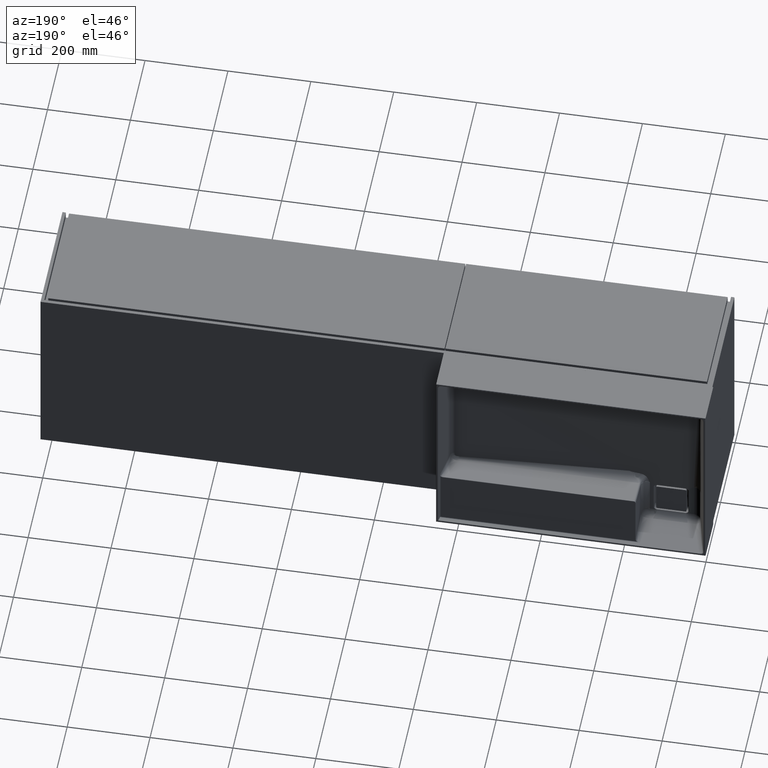
[diagram: clean part render]
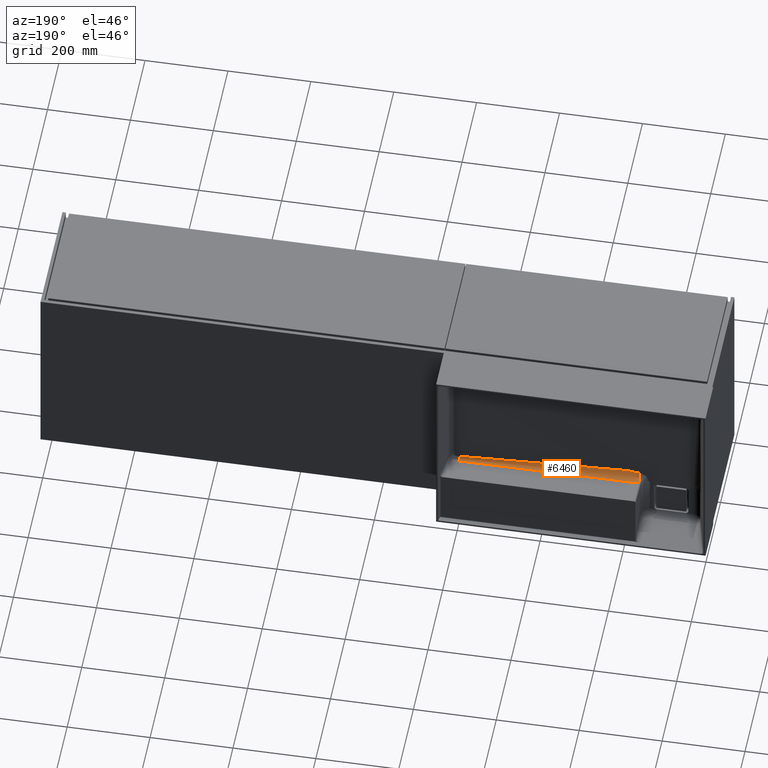
[diagram: same view with one face highlighted and labeled with its STEP entity id]
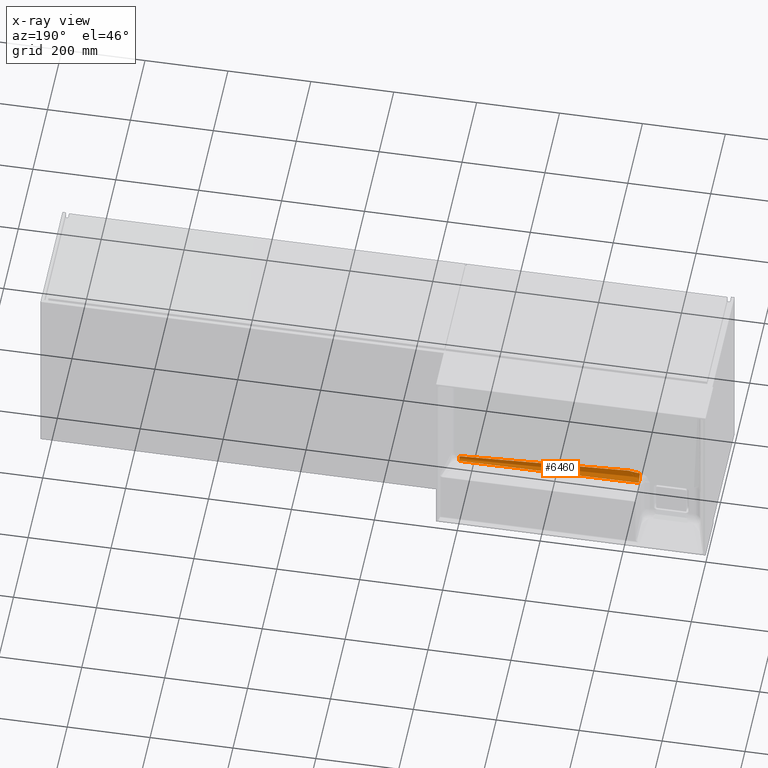
[diagram: x-ray of the same camera — body ghosted, the highlighted face saturated]
A machine part, auxiliary view. The second image highlights one B-rep face of the part: STEP entity #6460.
The next image is the same camera in x-ray: the body ghosted, the highlighted face saturated — about 0% of this face is hidden behind the body in this view.
In plain terms, the highlighted face is a freeform B-spline surface patch.
Its self-contained STEP definition (entity closure, byte-faithful):
#254 = CARTESIAN_POINT ( 'NONE',  ( 173.9812721945681062, 316.6229568114036965, -309.0496244574869706 ) ) ;
#281 = CARTESIAN_POINT ( 'NONE',  ( 198.8552613548532406, 316.8220531439237675, -304.8234223945268013 ) ) ;
#357 = CARTESIAN_POINT ( 'NONE',  ( 184.6771654203996320, 316.6808296650964962, -307.8211619812075241 ) ) ;
#382 = CARTESIAN_POINT ( 'NONE',  ( 318.3003675270152826, 320.5153372332214872, -323.0495504626817365 ) ) ;
#959 = ORIENTED_EDGE ( 'NONE', *, *, #3617, .F. ) ;
#972 = VERTEX_POINT ( 'NONE', #13473 ) ;
#1123 = CARTESIAN_POINT ( 'NONE',  ( 606.9319754812725023, 329.4440480074060815, -315.4900018526547569 ) ) ;
#1581 = CARTESIAN_POINT ( 'NONE',  ( 191.0590375558672918, 316.7265386575339789, -306.8509008232532551 ) ) ;
#1605 = CARTESIAN_POINT ( 'NONE',  ( 174.0026961197891922, 316.0515427703932119, -304.4234434570518602 ) ) ;
#1911 = CARTESIAN_POINT ( 'NONE',  ( 173.8613598786187708, 320.1329318382710767, -323.0395368250019601 ) ) ;
#1966 = B_SPLINE_CURVE_WITH_KNOTS ( 'NONE', 3,
 ( #6497, #11453, #281, #5281, #10247, #15215, #4060, #9026, #13977, #2814, #7800, #12754, #1581, #6578, #11534, #357, #5360, #10322, #15291, #4137 ),
 .UNSPECIFIED., .F., .F.,
 ( 4, 2, 2, 2, 2, 2, 2, 2, 2, 4 ),
 ( 0.0000000000000000000, 0.0008055719474762392191, 0.001611143894952478438, 0.003222287789904877946, 0.004833431684857278539, 0.006444575579809678698, 0.009666863369714480750, 0.01288915115961928280, 0.01933372673942888517, 0.02577830231923849275 ),
 .UNSPECIFIED. ) ;
#2144 = CARTESIAN_POINT ( 'NONE',  ( 199.3272960926469750, 316.8349497930412326, -304.5496662463541497 ) ) ;
#2350 = CARTESIAN_POINT ( 'NONE',  ( 606.8985585372915921, 330.4204131196938192, -319.4569766867286944 ) ) ;
#2675 = CARTESIAN_POINT ( 'NONE',  ( 199.3272960926469750, 316.8349497930412326, -304.5496662463541497 ) ) ;
#2786 = ORIENTED_EDGE ( 'NONE', *, *, #5492, .F. ) ;
#2814 = CARTESIAN_POINT ( 'NONE',  ( 194.2290445181043594, 316.7556448546313845, -306.2330658854570515 ) ) ;
#2835 = CARTESIAN_POINT ( 'NONE',  ( 606.9319754812725023, 329.4440480074060815, -315.4900018526547569 ) ) ;
#3593 = CARTESIAN_POINT ( 'NONE',  ( 606.8073170552664806, 333.2926610861865697, -322.4068700512898999 ) ) ;
#3617 = EDGE_CURVE ( 'NONE', #10510, #11130, #9032, .T. ) ;
#3915 = CARTESIAN_POINT ( 'NONE',  ( 606.9319754812725023, 329.4440480074060815, -315.4900018526547569 ) ) ;
#4060 = CARTESIAN_POINT ( 'NONE',  ( 196.8433714277378499, 316.7865976977785749, -305.5760323383928494 ) ) ;
#4137 = CARTESIAN_POINT ( 'NONE',  ( 173.9812721945681062, 316.6229568114036965, -309.0496244574869706 ) ) ;
#4160 = CARTESIAN_POINT ( 'NONE',  ( 317.7278697431761998, 339.0093540719751104, -323.5338333371205977 ) ) ;
#4500 = CARTESIAN_POINT ( 'NONE',  ( 462.3719663152675139, 332.7665495266904259, -323.3703597469259421 ) ) ;
#4548 = CARTESIAN_POINT ( 'NONE',  ( 173.4152192562205528, 334.5450962275781421, -323.4169326313426609 ) ) ;
#4826 = CARTESIAN_POINT ( 'NONE',  ( 606.6846168019388870, 337.2308073616522961, -323.4872604524568942 ) ) ;
#5281 = CARTESIAN_POINT ( 'NONE',  ( 198.3646758481633299, 316.8115746191032258, -305.0458492099915020 ) ) ;
#5360 = CARTESIAN_POINT ( 'NONE',  ( 182.5415527639360675, 316.6680791695544031, -308.0918157390203760 ) ) ;
#5383 = CARTESIAN_POINT ( 'NONE',  ( 173.9877170403044886, 316.0510793981750339, -322.9326497571486243 ) ) ;
#5492 = EDGE_CURVE ( 'NONE', #972, #10553, #10152, .T. ) ;
#5665 = ORIENTED_EDGE ( 'NONE', *, *, #9580, .F. ) ;
#6105 = CARTESIAN_POINT ( 'NONE',  ( 606.6846168019388870, 337.2308073616522961, -323.4872604524568942 ) ) ;
#6460 = ADVANCED_FACE ( 'NONE', ( #9047 ), #7933, .T. ) ;
#6497 = CARTESIAN_POINT ( 'NONE',  ( 199.3272960926469750, 316.8349497930412326, -304.5496662463541497 ) ) ;
#6578 = CARTESIAN_POINT ( 'NONE',  ( 188.9359916805836122, 316.7100343581346920, -307.2012362778853571 ) ) ;
#6605 = CARTESIAN_POINT ( 'NONE',  ( 606.9256685004369274, 329.4438529033142800, -323.2833518737480745 ) ) ;
#6912 = CARTESIAN_POINT ( 'NONE',  ( 173.9812721945681062, 316.6229568114036397, -309.0496244574869706 ) ) ;
#7351 = CARTESIAN_POINT ( 'NONE',  ( 606.9240862386012623, 329.6451574235028943, -317.5491274639952053 ) ) ;
#7800 = CARTESIAN_POINT ( 'NONE',  ( 193.7021115397276958, 316.7503751772954956, -306.3449249084015378 ) ) ;
#7823 = CARTESIAN_POINT ( 'NONE',  ( 462.6193249945617367, 324.9797901723597420, -315.3731011471215879 ) ) ;
#7933 =( BOUNDED_SURFACE ( )  B_SPLINE_SURFACE ( 2, 3, ( 
 ( #2835, #7823, #12778, #1605 ),
 ( #6605, #11558, #382, #5383 ),
 ( #10343, #15311, #4160, #9126 ) ),
 .UNSPECIFIED., .F., .F., .T. ) 
 B_SPLINE_SURFACE_WITH_KNOTS ( ( 3, 3 ),
 ( 4, 4 ),
 ( 0.0000000000000000000, 1.000000000000000000 ),
 ( -0.4346882425457793686, -0.001543048426497325726 ),
 .UNSPECIFIED. ) 
 GEOMETRIC_REPRESENTATION_ITEM ( )  RATIONAL_B_SPLINE_SURFACE ( (
 ( 1.000000000000000000, 1.000000000000000000, 1.000000000000000000, 1.000000000000000000),
 ( 0.7162975751252874668, 0.7162975751252874668, 0.7162975751252874668, 0.7162975751252874668),
 ( 1.000000000000000000, 1.000000000000000000, 1.000000000000000000, 1.000000000000000000) ) ) 
 REPRESENTATION_ITEM ( '' )  SURFACE ( )  );
#8561 = CARTESIAN_POINT ( 'NONE',  ( 606.8344669809554262, 332.4306366061871927, -321.8099686274450733 ) ) ;
#8885 = CARTESIAN_POINT ( 'NONE',  ( 471.0608868346715781, 325.2409267287021066, -315.3799392485047974 ) ) ;
#8938 = VERTEX_POINT ( 'NONE', #254 ) ;
#9017 = ORIENTED_EDGE ( 'NONE', *, *, #13083, .T. ) ;
#9026 = CARTESIAN_POINT ( 'NONE',  ( 195.8048643806831706, 316.7731144977071267, -305.8622391571529420 ) ) ;
#9032 = B_SPLINE_CURVE_WITH_KNOTS ( 'NONE', 3,
 ( #10677, #15654, #4500, #9465 ),
 .UNSPECIFIED., .F., .F.,
 ( 4, 4 ),
 ( -0.4346882425457793686, -0.001543048426497328762 ),
 .UNSPECIFIED. ) ;
#9047 = FACE_OUTER_BOUND ( 'NONE', #15394, .T. ) ;
#9126 = CARTESIAN_POINT ( 'NONE',  ( 173.4152192564654058, 334.5450962369286572, -323.4169326315874287 ) ) ;
#9465 = CARTESIAN_POINT ( 'NONE',  ( 606.6846168019388870, 337.2308073616522961, -323.4872604524568942 ) ) ;
#9518 =( BOUNDED_CURVE ( )  B_SPLINE_CURVE ( 2, ( #13077, #1911, #6912 ),
 .UNSPECIFIED., .F., .T. ) 
 B_SPLINE_CURVE_WITH_KNOTS ( ( 3, 3 ),
 ( 0.0000000000000000000, 1.000000000000000000 ),
 .UNSPECIFIED. ) 
 CURVE ( )  GEOMETRIC_REPRESENTATION_ITEM ( )  RATIONAL_B_SPLINE_CURVE ( ( 1.000000000000000000, 0.7641457412185800324, 0.9204434452545302570 ) ) 
 REPRESENTATION_ITEM ( '' )  );
#9580 = EDGE_CURVE ( 'NONE', #11130, #972, #9609, .T. ) ;
#9609 = B_SPLINE_CURVE_WITH_KNOTS ( 'NONE', 3,
 ( #4826, #9792, #14756, #3593, #8561, #13515, #2350, #7351, #12296, #1123 ),
 .UNSPECIFIED., .F., .F.,
 ( 4, 2, 2, 2, 4 ),
 ( 0.0000000000000000000, 0.2500000000000000000, 0.5000000000000000000, 0.7500000000000000000, 1.000000000000000000 ),
 .UNSPECIFIED. ) ;
#9792 = CARTESIAN_POINT ( 'NONE',  ( 606.7164674865446159, 336.2019001532993911, -323.4603175689985619 ) ) ;
#10152 = B_SPLINE_CURVE_WITH_KNOTS ( 'NONE', 3,
 ( #3915, #8885, #13837, #2675 ),
 .UNSPECIFIED., .F., .F.,
 ( 4, 4 ),
 ( -0.4346882425457793686, -0.02687985659662373017 ),
 .UNSPECIFIED. ) ;
#10247 = CARTESIAN_POINT ( 'NONE',  ( 198.1148904920754887, 316.8069209751066637, -305.1446317420970900 ) ) ;
#10322 = CARTESIAN_POINT ( 'NONE',  ( 178.2644837121267187, 316.6443237527143424, -308.5960700885866572 ) ) ;
#10343 = CARTESIAN_POINT ( 'NONE',  ( 606.6846168019783363, 337.2308073617368791, -323.4872604524591111 ) ) ;
#10510 = VERTEX_POINT ( 'NONE', #4548 ) ;
#10553 = VERTEX_POINT ( 'NONE', #2144 ) ;
#10677 = CARTESIAN_POINT ( 'NONE',  ( 173.4152192562205528, 334.5450962275781421, -323.4169326313426609 ) ) ;
#11130 = VERTEX_POINT ( 'NONE', #6105 ) ;
#11247 = EDGE_CURVE ( 'NONE', #10553, #8938, #1966, .T. ) ;
#11453 = CARTESIAN_POINT ( 'NONE',  ( 199.0965661181187727, 316.8278122476280032, -304.7011743568679094 ) ) ;
#11534 = CARTESIAN_POINT ( 'NONE',  ( 187.8723330342561155, 316.7024201626880426, -307.3628622008570233 ) ) ;
#11558 = CARTESIAN_POINT ( 'NONE',  ( 462.6130180137261618, 324.9795950682678836, -323.1664511682149055 ) ) ;
#12296 = CARTESIAN_POINT ( 'NONE',  ( 606.9311421262177646, 329.4440222278793726, -316.5197541206923120 ) ) ;
#12345 = ORIENTED_EDGE ( 'NONE', *, *, #11247, .F. ) ;
#12754 = CARTESIAN_POINT ( 'NONE',  ( 192.1184905281107547, 316.7354091234107045, -306.6626081474759644 ) ) ;
#12778 = CARTESIAN_POINT ( 'NONE',  ( 318.3153466065000430, 320.5158006054395514, -304.5403441625850292 ) ) ;
#13077 = CARTESIAN_POINT ( 'NONE',  ( 173.4152192562205528, 334.5450962275781421, -323.4169326313426609 ) ) ;
#13083 = EDGE_CURVE ( 'NONE', #10510, #8938, #9518, .T. ) ;
#13473 = CARTESIAN_POINT ( 'NONE',  ( 606.9319754812725023, 329.4440480074060815, -315.4900018526547569 ) ) ;
#13515 = CARTESIAN_POINT ( 'NONE',  ( 606.8800961171949666, 330.9942483443089714, -320.3347505222957921 ) ) ;
#13837 = CARTESIAN_POINT ( 'NONE',  ( 335.1974854116678557, 321.0380432513831579, -305.7710013909584177 ) ) ;
#13977 = CARTESIAN_POINT ( 'NONE',  ( 195.2801291537135739, 316.7670150134596838, -305.9917124256157877 ) ) ;
#14756 = CARTESIAN_POINT ( 'NONE',  ( 606.7483064508006692, 335.1786398577673936, -323.2321963724518810 ) ) ;
#15215 = CARTESIAN_POINT ( 'NONE',  ( 197.3579698442219978, 316.7939460989398981, -305.4200484096364221 ) ) ;
#15291 = CARTESIAN_POINT ( 'NONE',  ( 176.1234516139296886, 316.6333546551161362, -308.8289102535022153 ) ) ;
#15311 = CARTESIAN_POINT ( 'NONE',  ( 462.3719663152675139, 332.7665495266904259, -323.3703597469259421 ) ) ;
#15394 = EDGE_LOOP ( 'NONE', ( #12345, #2786, #5665, #959, #9017 ) ) ;
#15654 = CARTESIAN_POINT ( 'NONE',  ( 317.7278697431761998, 339.0093540719751104, -323.5338333371205977 ) ) ;